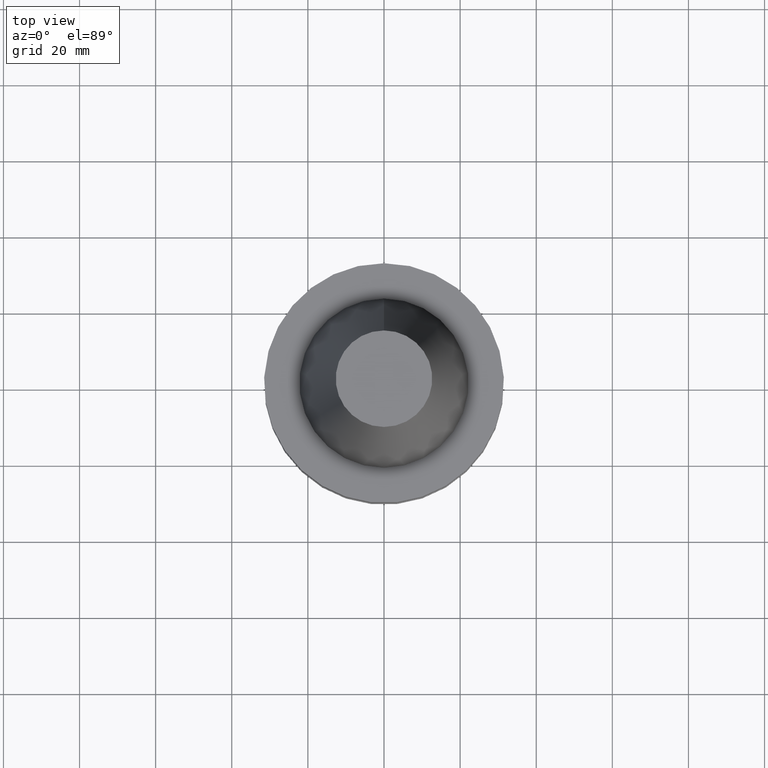
[diagram: clean part render]
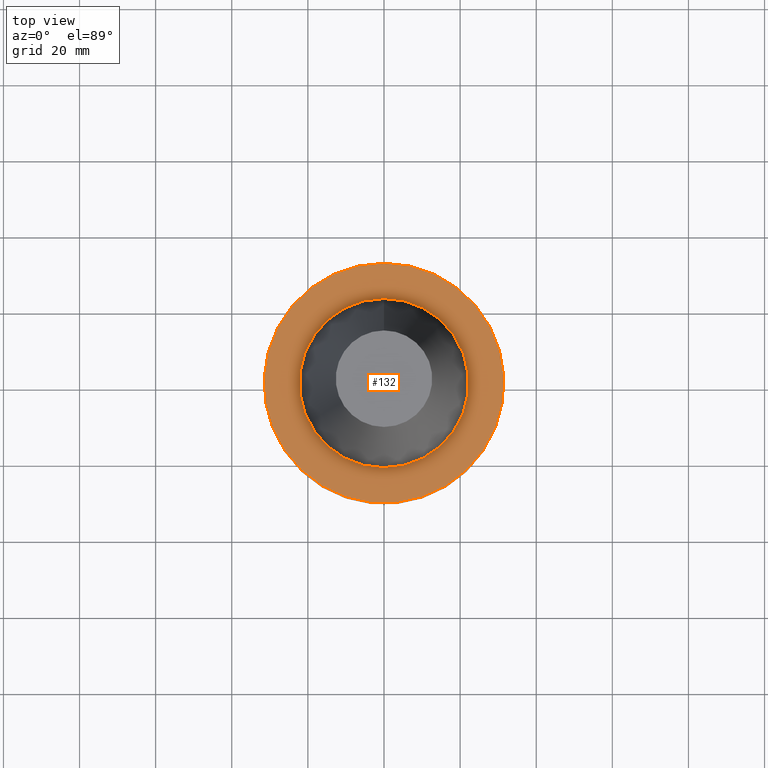
[diagram: same view with one face highlighted and labeled with its STEP entity id]
A machine part, top view. The second image highlights one B-rep face of the part: STEP entity #132.
In plain terms, the highlighted planar face has unit normal (-0, -0, 1).
Its self-contained STEP definition (entity closure, byte-faithful):
#110=EDGE_CURVE('Unnamed[1]',#254,#254,#255,.T.);
#132=ADVANCED_FACE('Unnamed[1]',(#288,#289),#290,.T.);
#176=EDGE_CURVE('Unnamed[1]',#356,#356,#357,.T.);
#254=VERTEX_POINT('',#443);
#255=CIRCLE('',#444,31.4999999999996);
#288=FACE_OUTER_BOUND('',#485,.T.);
#289=FACE_BOUND('',#486,.T.);
#290=PLANE('',#487);
#356=VERTEX_POINT('',#569);
#357=CIRCLE('',#570,22.225);
#443=CARTESIAN_POINT('',(6.12323399573568E-017,31.4999999999997,-0.999999999999825));
#444=AXIS2_PLACEMENT_3D('',#637,#638,#639);
#485=EDGE_LOOP('',(#676));
#486=EDGE_LOOP('',(#677));
#487=AXIS2_PLACEMENT_3D('',#678,#679,#680);
#569=CARTESIAN_POINT('',(6.12323399573622E-017,22.2250000000001,-0.999999999999912));
#570=AXIS2_PLACEMENT_3D('',#752,#753,#754);
#637=CARTESIAN_POINT('',(6.12323399573572E-017,7.50136925164251E-014,-0.999999999999829));
#638=DIRECTION('',(6.12323399573677E-017,-3.19681415020244E-017,-1.0));
#639=DIRECTION('',(-2.86966862251183E-033,1.0,-3.19681415020244E-017));
#676=ORIENTED_EDGE('',*,*,#110,.F.);
#677=ORIENTED_EDGE('',*,*,#176,.T.);
#678=CARTESIAN_POINT('',(6.12323399573595E-017,26.8624999999999,-0.999999999999869));
#679=DIRECTION('',(-6.12323399573677E-017,-9.35138060429241E-015,1.0));
#680=DIRECTION('',(5.77434068963536E-031,-1.0,-9.35138060429241E-015));
#752=CARTESIAN_POINT('',(6.12323399573624E-017,7.50136925164251E-014,-0.999999999999915));
#753=DIRECTION('',(6.12323399573677E-017,-3.19681415020243E-017,-1.0));
#754=DIRECTION('',(-2.86966862251184E-033,1.0,-3.19681415020243E-017));